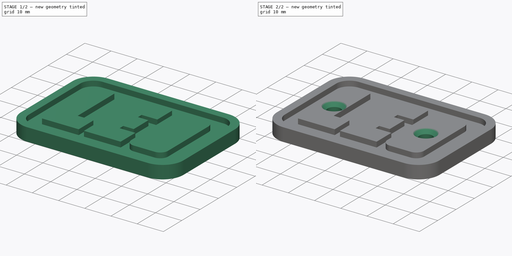
[diagram: build sequence overview — one tinted view per stage of 2, left to right]
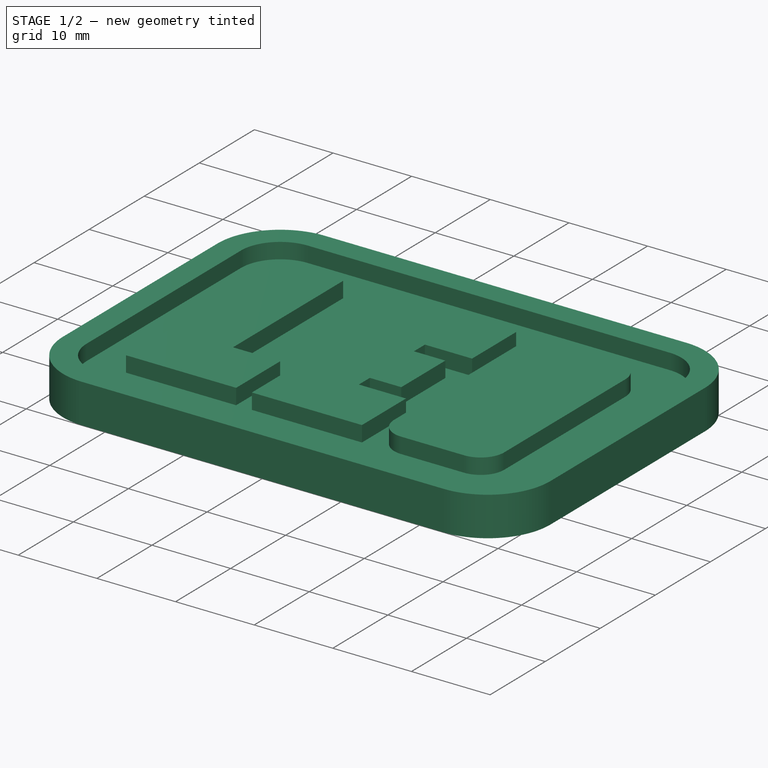
[diagram: stage 1 of 2 — iso view after this stage's code; geometry added in this stage tinted green]
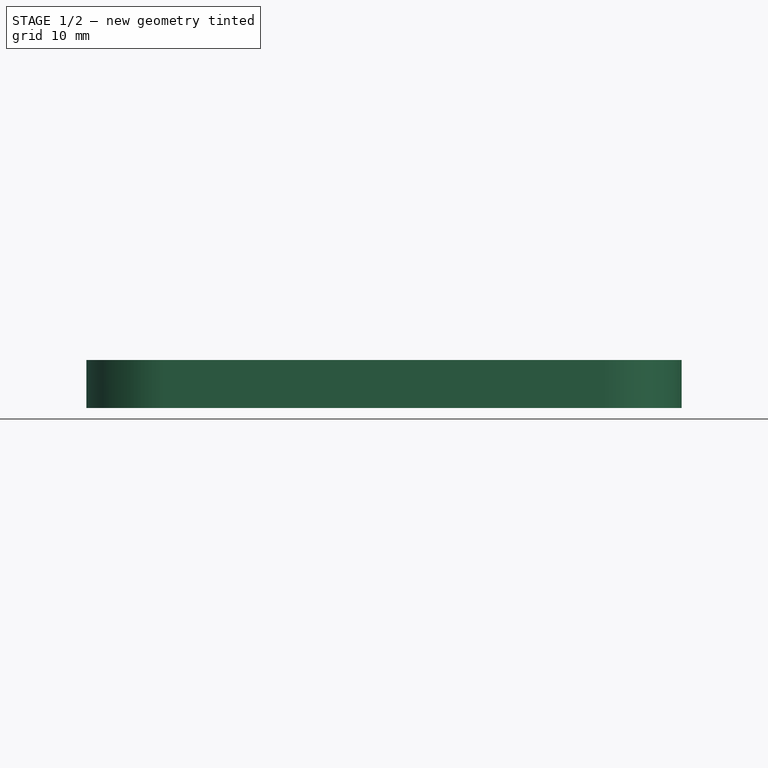
[diagram: stage 1 of 2 — front view after this stage's code; geometry added in this stage tinted green]
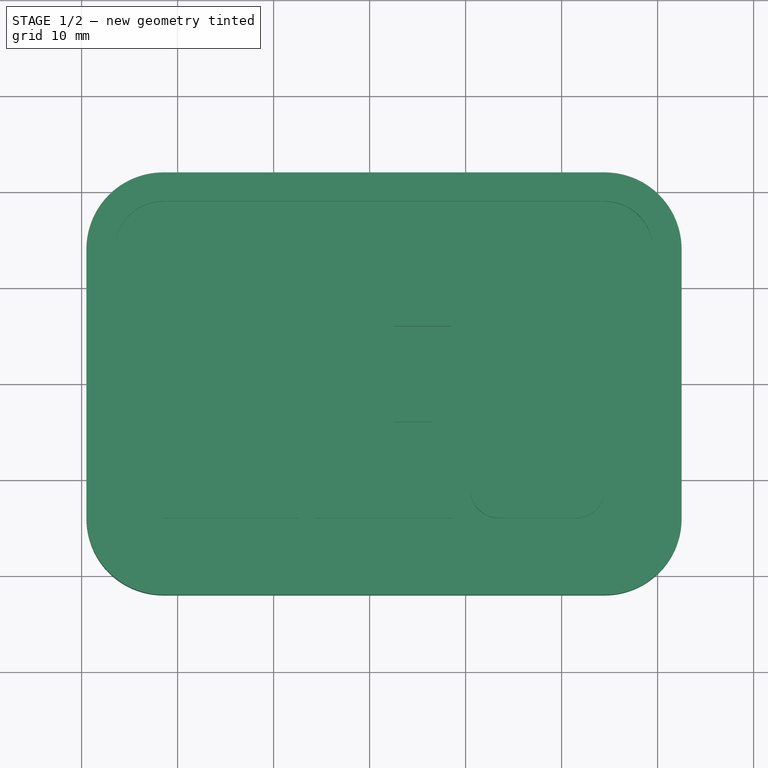
[diagram: stage 1 of 2 — top view after this stage's code; geometry added in this stage tinted green]
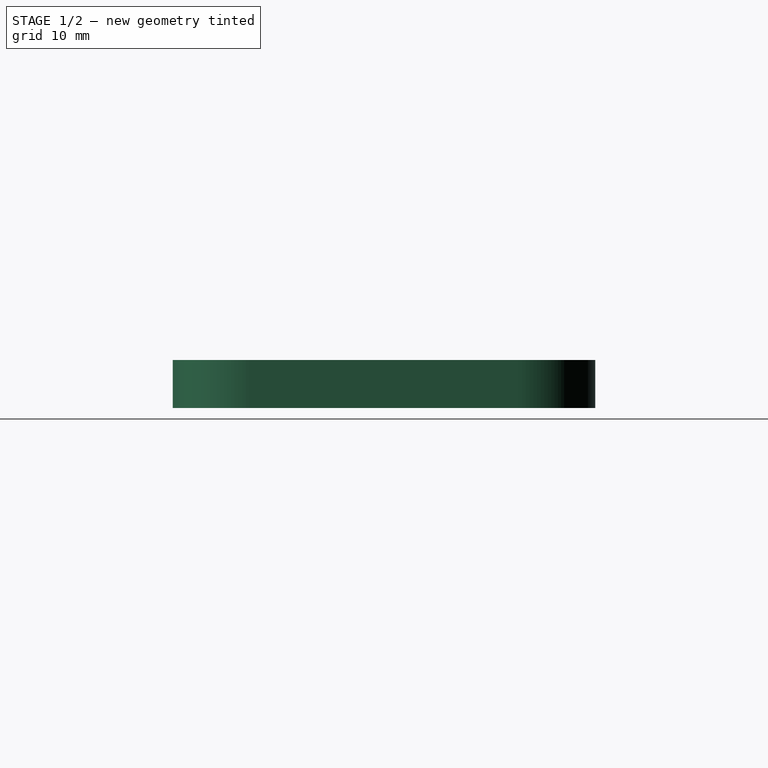
[diagram: stage 1 of 2 — right view after this stage's code; geometry added in this stage tinted green]
FCSTD DOCUMENT  (FreeCAD 0.20RUnknown)
Label: CamperFixLeo
License: All rights reserved
LicenseURL: http://en.wikipedia.org/wiki/All_rights_reserved
objects: Sketcher::SketchObject×3, PartDesign::Pad×2, PartDesign::Hole×1, PartDesign::Body×1
note: 10 computed .brp shape members not serialized (recipe doc carries the construction recipe); baked Part::Feature solids carry a one-line shape summary decoded from their .brp

FEATURE [Sketcher::SketchObject] Sketch
  FullyConstrained = true
  MapMode = 5
  Support = -> [XY_Plane]
  sketch-geometry (70):
    g0: Circle CenterX=-17.5 CenterY=0 CenterZ=0 NormalX=0 NormalY=0 NormalZ=1 AngleXU=0 Radius=4
    g1: Circle CenterX=17.5 CenterY=0 CenterZ=0 NormalX=0 NormalY=0 NormalZ=1 AngleXU=0 Radius=4
    g2: LineSegment StartX=-21.5 StartY=0 StartZ=0 EndX=-9.83333 EndY=0 EndZ=0
    g3: LineSegment StartX=-9.83333 StartY=0 StartZ=0 EndX=1.83333 EndY=0 EndZ=0
    g4: LineSegment StartX=1.83333 StartY=0 StartZ=0 EndX=13.5 EndY=0 EndZ=0
    g5: LineSegment StartX=-21.5 StartY=14 StartZ=0 EndX=-21.5 EndY=-14 EndZ=0
    g6: LineSegment StartX=-21.5 StartY=-14 StartZ=0 EndX=-7.5 EndY=-14 EndZ=0
    g7: LineSegment StartX=-7.5 StartY=-14 StartZ=0 EndX=-7.5 EndY=-6 EndZ=0
    g8: LineSegment StartX=-7.5 StartY=-6 StartZ=0 EndX=-13.5 EndY=-6 EndZ=0
    g9: LineSegment StartX=-13.5 StartY=-6 StartZ=0 EndX=-13.5 EndY=14 EndZ=0
    g10: LineSegment StartX=-13.5 StartY=14 StartZ=0 EndX=-21.5 EndY=14 EndZ=0
    g11: LineSegment StartX=8.5 StartY=14 StartZ=0 EndX=-5.5 EndY=14 EndZ=0
    g12: LineSegment StartX=-5.5 StartY=14 StartZ=0 EndX=-5.5 EndY=-14 EndZ=0
    g13: LineSegment StartX=-5.5 StartY=-14 StartZ=0 EndX=8.5 EndY=-14 EndZ=0
    g14: LineSegment StartX=8.5 StartY=-14 StartZ=0 EndX=8.5 EndY=-6 EndZ=0
    g15: LineSegment StartX=8.5 StartY=-6 StartZ=0 EndX=2.5 EndY=-6 EndZ=0
    g16: LineSegment StartX=2.5 StartY=-4 StartZ=0 EndX=6.5 EndY=-4 EndZ=0
    g17: LineSegment StartX=6.5 StartY=-4 StartZ=0 EndX=6.5 EndY=4 EndZ=0
    g18: LineSegment StartX=6.5 StartY=4 StartZ=0 EndX=2.5 EndY=4 EndZ=0
    g19: LineSegment StartX=2.5 StartY=6 StartZ=0 EndX=8.5 EndY=6 EndZ=0
    g20: LineSegment StartX=8.5 StartY=6 StartZ=0 EndX=8.5 EndY=14 EndZ=0
    g21: LineSegment StartX=2.5 StartY=6 StartZ=0 EndX=-5.5 EndY=6 EndZ=0
    g22: LineSegment StartX=13.5 StartY=14 StartZ=0 EndX=21.5 EndY=14 EndZ=0
    g23: LineSegment StartX=24.5 StartY=11 StartZ=0 EndX=24.5 EndY=-11 EndZ=0
    g24: LineSegment StartX=21.5 StartY=-14 StartZ=0 EndX=13.5 EndY=-14 EndZ=0
    g25: LineSegment StartX=10.5 StartY=-11 StartZ=0 EndX=10.5 EndY=11 EndZ=0
    g26: ArcOfCircle CenterX=13.5 CenterY=11 CenterZ=0 NormalX=0 NormalY=0 NormalZ=1 AngleXU=0 Radius=3 StartAngle=1.5708 EndAngle=3.14159
    g27: GeomPoint X=10.5 Y=14 Z=0
    g28: ArcOfCircle CenterX=21.5 CenterY=11 CenterZ=0 NormalX=0 NormalY=0 NormalZ=1 AngleXU=0 Radius=3 StartAngle=0 EndAngle=1.5708
    g29: GeomPoint X=24.5 Y=14 Z=0
    g30: ArcOfCircle CenterX=21.5 CenterY=-11 CenterZ=0 NormalX=0 NormalY=0 NormalZ=1 AngleXU=0 Radius=3 StartAngle=4.71239 EndAngle=6.28319
    g31: GeomPoint X=24.5 Y=-14 Z=0
    g32: ArcOfCircle CenterX=13.5 CenterY=-11 CenterZ=0 NormalX=0 NormalY=0 NormalZ=1 AngleXU=0 Radius=3 StartAngle=3.14159 EndAngle=4.71239
    g33: GeomPoint X=10.5 Y=-14 Z=0
    g34: LineSegment StartX=10.5 StartY=14 StartZ=0 EndX=10.5 EndY=-14 EndZ=0
    g35: LineSegment StartX=-7.5 StartY=-14 StartZ=0 EndX=-5.5 EndY=-14 EndZ=0
    g36: LineSegment StartX=8.5 StartY=-14 StartZ=0 EndX=10.5 EndY=-14 EndZ=0
    g37: LineSegment StartX=-21.5 StartY=-14 StartZ=0 EndX=-21.5 EndY=0 EndZ=0
    g38: LineSegment StartX=-21.5 StartY=0 StartZ=0 EndX=-21.5 EndY=14 EndZ=0
    g39: LineSegment StartX=-17.5 StartY=0 StartZ=0 EndX=0 EndY=0 EndZ=0
    g40: LineSegment StartX=0 StartY=0 StartZ=0 EndX=17.5 EndY=0 EndZ=0
    g41: ArcOfCircle CenterX=-21.5 CenterY=-14 CenterZ=0 NormalX=0 NormalY=0 NormalZ=1 AngleXU=0 Radius=5 StartAngle=3.14159 EndAngle=4.71239
    g42: LineSegment StartX=-26.5 StartY=-14 StartZ=0 EndX=-26.5 EndY=14 EndZ=0
    g43: ArcOfCircle CenterX=-21.5 CenterY=14 CenterZ=0 NormalX=0 NormalY=0 NormalZ=1 AngleXU=0 Radius=5 StartAngle=1.5708 EndAngle=3.14159
    g44: LineSegment StartX=-21.5 StartY=19 StartZ=0 EndX=24.5 EndY=19 EndZ=0
    g45: ArcOfCircle CenterX=24.5 CenterY=14 CenterZ=0 NormalX=0 NormalY=0 NormalZ=1 AngleXU=0 Radius=5 StartAngle=2e-16 EndAngle=1.5708
    g46: LineSegment StartX=29.5 StartY=14 StartZ=0 EndX=29.5 EndY=-14 EndZ=0
    g47: ArcOfCircle CenterX=24.5 CenterY=-14 CenterZ=0 NormalX=0 NormalY=0 NormalZ=1 AngleXU=0 Radius=5 StartAngle=4.71239 EndAngle=6.28319
    g48: LineSegment StartX=24.5 StartY=-19 StartZ=0 EndX=-21.5 EndY=-19 EndZ=0
    g49: GeomPoint X=-26.5 Y=-19 Z=0
    g50: GeomPoint X=29.5 Y=19 Z=0
    g51: ArcOfCircle CenterX=-21.5 CenterY=14 CenterZ=0 NormalX=0 NormalY=0 NormalZ=1 AngleXU=0 Radius=8 StartAngle=1.5708 EndAngle=3.14159
    g52: LineSegment StartX=-21.5 StartY=22 StartZ=0 EndX=24.5 EndY=22 EndZ=0
    g53: ArcOfCircle CenterX=24.5 CenterY=14 CenterZ=0 NormalX=0 NormalY=0 NormalZ=1 AngleXU=0 Radius=8 StartAngle=0 EndAngle=1.5708
    g54: LineSegment StartX=32.5 StartY=14 StartZ=0 EndX=32.5 EndY=-14 EndZ=0
    g55: ArcOfCircle CenterX=24.5 CenterY=-14 CenterZ=0 NormalX=0 NormalY=0 NormalZ=1 AngleXU=0 Radius=8 StartAngle=4.71239 EndAngle=6.28319
    g56: LineSegment StartX=24.5 StartY=-22 StartZ=0 EndX=-21.5 EndY=-22 EndZ=0
    g57: ArcOfCircle CenterX=-21.5 CenterY=-14 CenterZ=0 NormalX=0 NormalY=0 NormalZ=1 AngleXU=0 Radius=8 StartAngle=3.14159 EndAngle=4.71239
    g58: LineSegment StartX=-29.5 StartY=-14 StartZ=0 EndX=-29.5 EndY=14 EndZ=0
    g59: GeomPoint X=-29.5 Y=22 Z=0
    g60: GeomPoint X=32.5 Y=-22 Z=0
    g61: LineSegment StartX=-21.5 StartY=22 StartZ=0 EndX=-21.5 EndY=19 EndZ=0
    g62: LineSegment StartX=-26.5 StartY=14 StartZ=0 EndX=-29.5 EndY=14 EndZ=0
    g63: LineSegment StartX=24.5 StartY=-19 StartZ=0 EndX=24.5 EndY=-22 EndZ=0
    g64: LineSegment StartX=29.5 StartY=-14 StartZ=0 EndX=32.5 EndY=-14 EndZ=0
    g65: LineSegment StartX=10.5 StartY=11 StartZ=0 EndX=24.5 EndY=11 EndZ=0
    g66: LineSegment StartX=10.5 StartY=0 StartZ=0 EndX=17.5 EndY=0 EndZ=0
    g67: LineSegment StartX=24.5 StartY=0 StartZ=0 EndX=17.5 EndY=0 EndZ=0
    g68: LineSegment StartX=2.5 StartY=6 StartZ=0 EndX=2.5 EndY=4 EndZ=0
    g69: LineSegment StartX=2.5 StartY=-4 StartZ=0 EndX=2.5 EndY=-6 EndZ=0
  constraints (178):
    c: PointOnObject(g0,g-1)
    c: PointOnObject(g1,g-1)
    c: Equal(g0,g1)
    c: DistanceX(g0,g1) = 35
    c: Diameter(g0) = 8
    c: PointOnObject(g2,g0)
    c: Coincident(g2,g3)
    c: Horizontal(g3)
    c: Coincident(g3,g4)
    c: PointOnObject(g4,g1)
    c: Horizontal(g2)
    c: Horizontal(g4)
    c: PointOnObject(g2,g-1)
    c: Equal(g2,g3)
    c: Equal(g4,g3)
    c: Vertical(g5)
    c: Coincident(g5,g6)
    c: Horizontal(g6)
    c: Coincident(g6,g7)
    c: Coincident(g7,g8)
    c: Horizontal(g8)
    c: Coincident(g8,g9)
    c: Vertical(g9)
    c: Coincident(g9,g10)
    c: Coincident(g10,g5)
    c: Horizontal(g10)
    c: Equal(g10,g7)
    c: Vertical(g7)
    c: Horizontal(g11)
    c: Coincident(g11,g12)
    c: Vertical(g12)
    c: Coincident(g12,g13)
    c: Horizontal(g13)
    c: Coincident(g13,g14)
    c: Vertical(g14)
    c: Coincident(g14,g15)
    c: Horizontal(g15)
    c: Coincident(g16,g17)
    c: Coincident(g17,g18)
    c: Horizontal(g18)
    c: Horizontal(g19)
    c: Coincident(g19,g20)
    c: Coincident(g20,g11)
    c: Vertical(g20)
    c: Vertical(g17)
    c: Horizontal(g16)
    c: Equal(g7,g14)
    c: Equal(g14,g20)
    c: PointOnObject(g21,g12)
    c: Horizontal(g21)
    c: Equal(g21,g10)
    c: Equal(g18,g16)
    c: Equal(g13,g11)
    c: Equal(g12,g5)
    c: Equal(g13,g6)
    c: Horizontal(g22)
    c: Horizontal(g24)
    c: Vertical(g23)
    c: Vertical(g25)
    c: PointOnObject(g27,g22)
    c: PointOnObject(g27,g25)
    c: Tangent(g22,g26) = 1.5708
    c: Tangent(g25,g26) = 1.5708
    c: PointOnObject(g29,g22)
    c: PointOnObject(g29,g23)
    c: Tangent(g22,g28) = 1.5708
    c: Tangent(g23,g28) = 1.5708
    c: PointOnObject(g31,g23)
    c: PointOnObject(g31,g24)
    c: Tangent(g23,g30) = 1.5708
    c: Tangent(g24,g30) = 1.5708
    c: PointOnObject(g33,g24)
    c: PointOnObject(g33,g25)
    c: Tangent(g24,g32) = 1.5708
    c: Tangent(g25,g32) = 1.5708
    c: Equal(g32,g30)
    c: Equal(g30,g28)
    c: Equal(g28,g26)
    c: Coincident(g34,g27)
    c: Coincident(g34,g33)
    c: Equal(g34,g12)
    c: Coincident(g35,g6)
    c: Coincident(g35,g12)
    c: Coincident(g36,g13)
    c: Coincident(g36,g33)
    c: Horizontal(g35)
    c: Horizontal(g36)
    c: Coincident(g5,g37)
    c: Coincident(g37,g38)
    c: Coincident(g38,g5)
    c: Equal(g38,g37)
    c: PointOnObject(g37,g5)
    c: Coincident(g37,g2)
    c: DistanceX(g10,g10) = 8
    c: Equal(g35,g36)
    c: Coincident(g39,g0)
    c: PointOnObject(g39,g-2)
    c: Coincident(g39,g40)
    c: Coincident(g40,g1)
    c: Equal(g39,g40)
    c: Horizontal(g39)
    c: Tangent(g41,g42) = 1.5708
    c: Tangent(g42,g43) = 1.5708
    c: Tangent(g43,g44) = 1.5708
    c: Tangent(g44,g45) = 1.5708
    c: Tangent(g45,g46) = 1.5708
    c: Tangent(g46,g47) = 1.5708
    c: Tangent(g47,g48) = 1.5708
    c: Tangent(g48,g41) = 1.5708
    c: Horizontal(g44)
    c: Horizontal(g48)
    c: Vertical(g42)
    c: Vertical(g46)
    c: Equal(g41,g43)
    c: Equal(g43,g45)
    c: Equal(g45,g47)
    c: PointOnObject(g49,g42)
    c: PointOnObject(g49,g48)
    c: PointOnObject(g50,g44)
    c: PointOnObject(g50,g46)
    c: Radius(g43) = 5
    c: Coincident(g41,g5)
    c: Coincident(g29,g45)
    c: Tangent(g51,g52) = 1.5708
    c: Tangent(g52,g53) = 1.5708
    c: Tangent(g53,g54) = 1.5708
    c: Tangent(g54,g55) = 1.5708
    c: Tangent(g55,g56) = 1.5708
    c: Tangent(g56,g57) = 1.5708
    c: Tangent(g57,g58) = 1.5708
    c: Tangent(g58,g51) = 1.5708
    c: Horizontal(g52)
    c: Horizontal(g56)
    c: Vertical(g54)
    c: Vertical(g58)
    c: Equal(g51,g53)
    c: Equal(g53,g55)
    c: Equal(g55,g57)
    c: PointOnObject(g59,g52)
    c: PointOnObject(g59,g58)
    c: PointOnObject(g60,g54)
    c: PointOnObject(g60,g56)
    c: Coincident(g61,g51)
    c: Coincident(g61,g43)
    c: Coincident(g62,g42)
    c: Coincident(g62,g51)
    c: Coincident(g63,g47)
    c: Coincident(g63,g55)
    c: Coincident(g64,g46)
    c: Coincident(g64,g54)
    c: Horizontal(g62)
    c: Horizontal(g64)
    c: Vertical(g63)
    c: Vertical(g61)
    c: DistanceX(g62,g62) = 3
    c: DistanceX(g35,g35) = 2
    c: Radius(g26) = 3
    c: Coincident(g65,g25)
    c: Coincident(g65,g23)
    c: Equal(g65,g11)
    c: PointOnObject(g66,g25)
    c: Coincident(g66,g1)
    c: PointOnObject(g67,g23)
    c: Coincident(g67,g1)
    c: Equal(g66,g67)
    c: Horizontal(g66)
    c: Horizontal(g67)
    c: Equal(g17,g14)
    c: Coincident(g68,g19)
    c: Coincident(g68,g18)
    c: Vertical(g68)
    c: Coincident(g69,g16)
    c: Coincident(g69,g15)
    c: Vertical(g69)
    c: Equal(g69,g68)
    c: Coincident(g21,g19)
    c: DistanceX(g18,g18) = 4
    c: DistanceY(g69,g69) = 2
FEATURE [Sketcher::SketchObject] Sketch001
  ExternalGeometry = -> [Sketch]
  FullyConstrained = true
  MapMode = 5
  Support = -> [XY_Plane]
  sketch-geometry (10):
    g0: ArcOfCircle CenterX=-21.5 CenterY=14 CenterZ=0 NormalX=0 NormalY=0 NormalZ=1 AngleXU=0 Radius=8 StartAngle=1.5708 EndAngle=3.14159
    g1: LineSegment StartX=-21.5 StartY=22 StartZ=0 EndX=24.5 EndY=22 EndZ=0
    g2: ArcOfCircle CenterX=24.5 CenterY=14 CenterZ=0 NormalX=0 NormalY=0 NormalZ=1 AngleXU=0 Radius=8 StartAngle=2e-16 EndAngle=1.5708
    g3: LineSegment StartX=32.5 StartY=14 StartZ=0 EndX=32.5 EndY=-14 EndZ=0
    g4: ArcOfCircle CenterX=24.5 CenterY=-14 CenterZ=0 NormalX=0 NormalY=0 NormalZ=1 AngleXU=0 Radius=8 StartAngle=4.71239 EndAngle=6.28319
    g5: LineSegment StartX=24.5 StartY=-22 StartZ=0 EndX=-21.5 EndY=-22 EndZ=0
    g6: ArcOfCircle CenterX=-21.5 CenterY=-14 CenterZ=0 NormalX=0 NormalY=0 NormalZ=1 AngleXU=0 Radius=8 StartAngle=3.14159 EndAngle=4.71239
    g7: LineSegment StartX=-29.5 StartY=-14 StartZ=0 EndX=-29.5 EndY=14 EndZ=0
    g8: GeomPoint X=-29.5 Y=22 Z=0
    g9: GeomPoint X=32.5 Y=-22 Z=0
  constraints (23):
    c: Tangent(g0,g1) = 1.5708
    c: Tangent(g1,g2) = 1.5708
    c: Tangent(g2,g3) = 1.5708
    c: Tangent(g3,g4) = 1.5708
    c: Tangent(g4,g5) = 1.5708
    c: Tangent(g5,g6) = 1.5708
    c: Tangent(g6,g7) = 1.5708
    c: Tangent(g7,g0) = 1.5708
    c: Horizontal(g1)
    c: Horizontal(g5)
    c: Vertical(g3)
    c: Vertical(g7)
    c: Equal(g0,g2)
    c: Equal(g2,g4)
    c: Equal(g4,g6)
    c: PointOnObject(g8,g1)
    c: PointOnObject(g8,g7)
    c: PointOnObject(g9,g3)
    c: PointOnObject(g9,g5)
    c: Equal(g1,g-3)
    c: Equal(g7,g-6)
    c: Equal(g0,g-7)
    c: Coincident(g0,g-7)
FEATURE [PartDesign::Pad] Pad
  Direction = (0,0,1)
  Length = 3
  Length2 = 10
  Profile = -> Sketch001
  ReferenceAxis = -> Sketch001 [N_Axis]
  Reversed = true
  Type = 0
FEATURE [PartDesign::Pad] Pad001
  BaseFeature = -> Pad
  Direction = (0,0,1)
  Length = 2
  Length2 = 10
  Profile = -> Sketch
  ReferenceAxis = -> Sketch [N_Axis]
  Type = 0
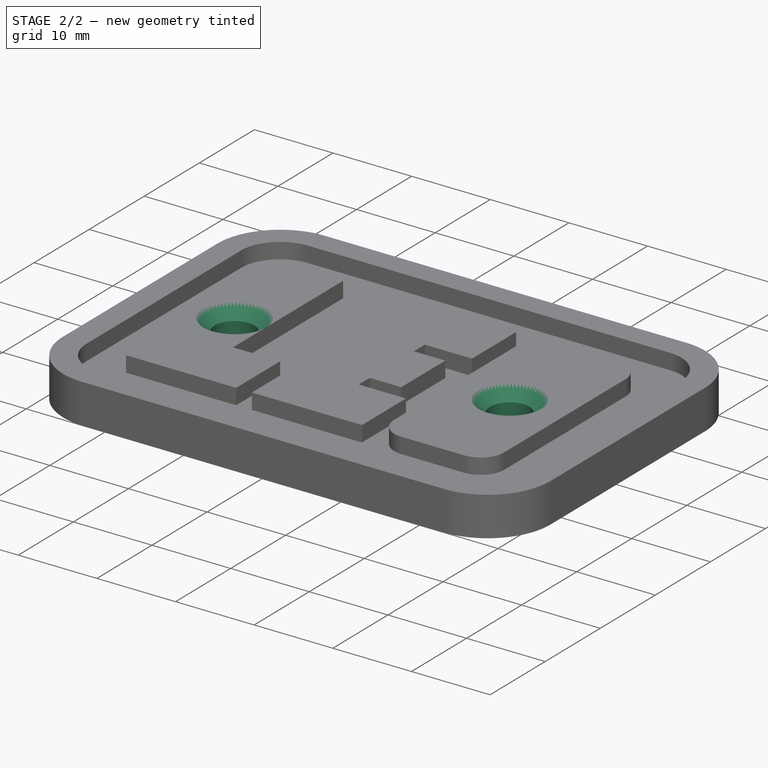
[diagram: stage 2 of 2 — iso view after this stage's code; geometry added in this stage tinted green]
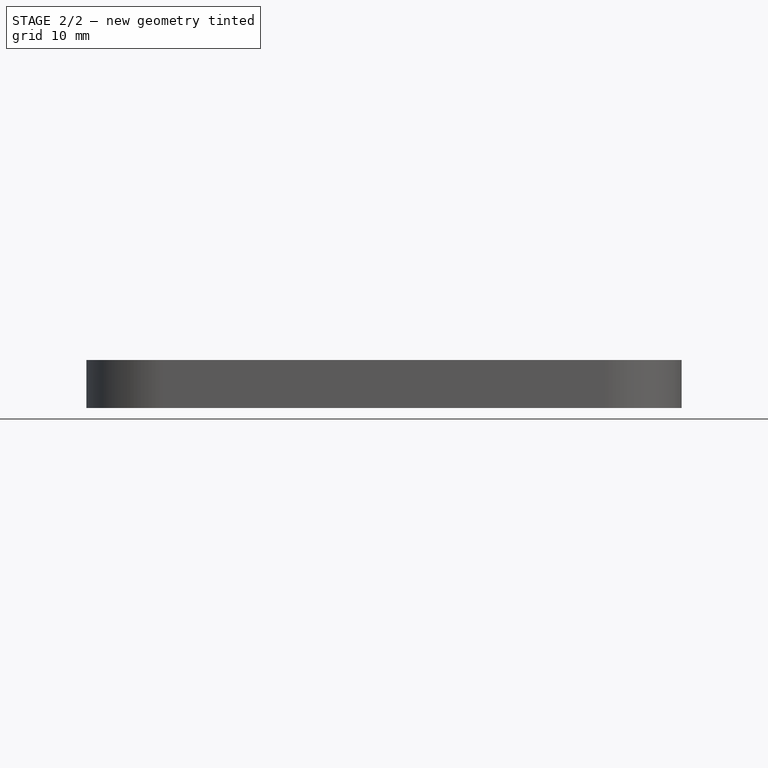
[diagram: stage 2 of 2 — front view after this stage's code; geometry added in this stage tinted green]
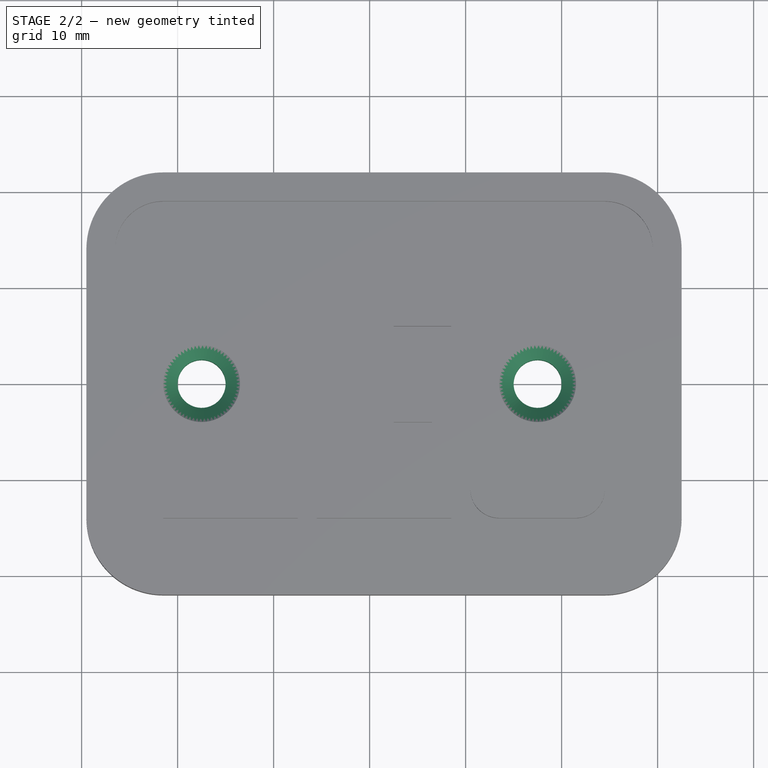
[diagram: stage 2 of 2 — top view after this stage's code; geometry added in this stage tinted green]
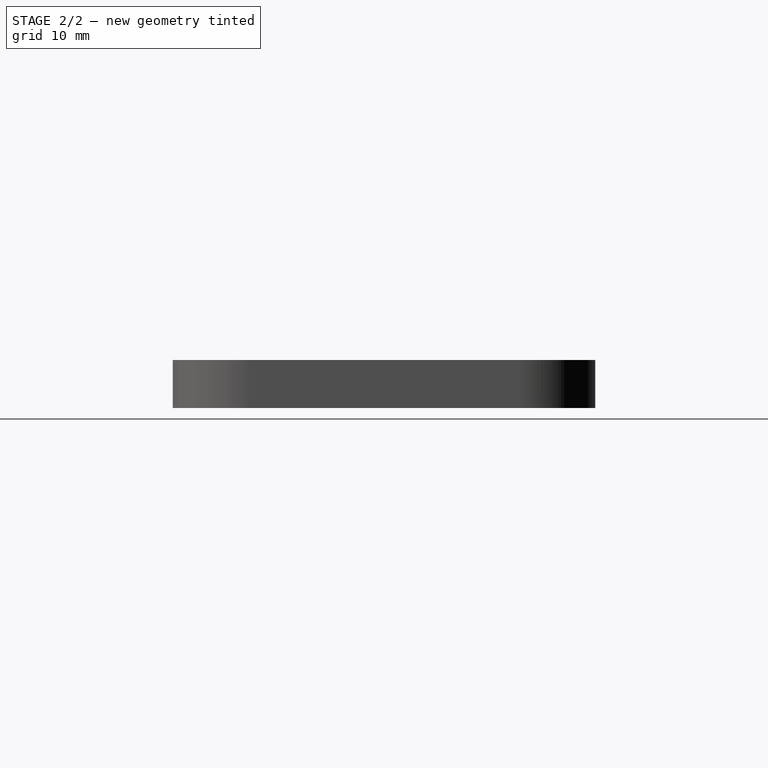
[diagram: stage 2 of 2 — right view after this stage's code; geometry added in this stage tinted green]
FEATURE [Sketcher::SketchObject] Sketch002  label="SketchHoles"
  ExternalGeometry = -> [Pad001]
  FullyConstrained = true
  MapMode = 5
  Placement = pos=(0,0,2) rot=(0,0,1;0rad)
  Support = -> [Pad001]
  sketch-geometry (2):
    g0: Circle CenterX=-17.5 CenterY=0 CenterZ=0 NormalX=0 NormalY=0 NormalZ=1 AngleXU=0 Radius=4
    g1: Circle CenterX=17.5 CenterY=0 CenterZ=0 NormalX=0 NormalY=0 NormalZ=1 AngleXU=0 Radius=7
  constraints (6):
    c: PointOnObject(g0,g-1)
    c: Tangent(g0,g-4)
    c: PointOnObject(g1,g-1)
    c: Tangent(g1,g-6)
    c: Tangent(g1,g-5)
    c: Tangent(g0,g-3)
FEATURE [PartDesign::Hole] Hole
  BaseFeature = -> Pad001
  CustomThreadClearance = 0
  Depth = 25
  DepthType = 0
  Diameter = 5
  DrillForDepth = false
  DrillPoint = 1
  DrillPointAngle = 118
  HoleCutCountersinkAngle = 90
  HoleCutCustomValues = false
  HoleCutDepth = 0
  HoleCutDiameter = 8
  HoleCutType = 2
  ModelThread = false
  Profile = -> Sketch002
  Tapered = false
  TaperedAngle = 90
  ThreadClass = 0
  ThreadDepth = 25
  ThreadDepthType = 0
  ThreadDirection = 0
  ThreadFit = 0
  ThreadSize = 0
  ThreadType = 0
  Threaded = false
  UseCustomThreadClearance = false
FEATURE [PartDesign::Body] Body
  Group = -> [Sketch,Sketch001,Pad,Pad001,Sketch002,Hole]
  Origin = -> Origin
  Tip = -> Hole
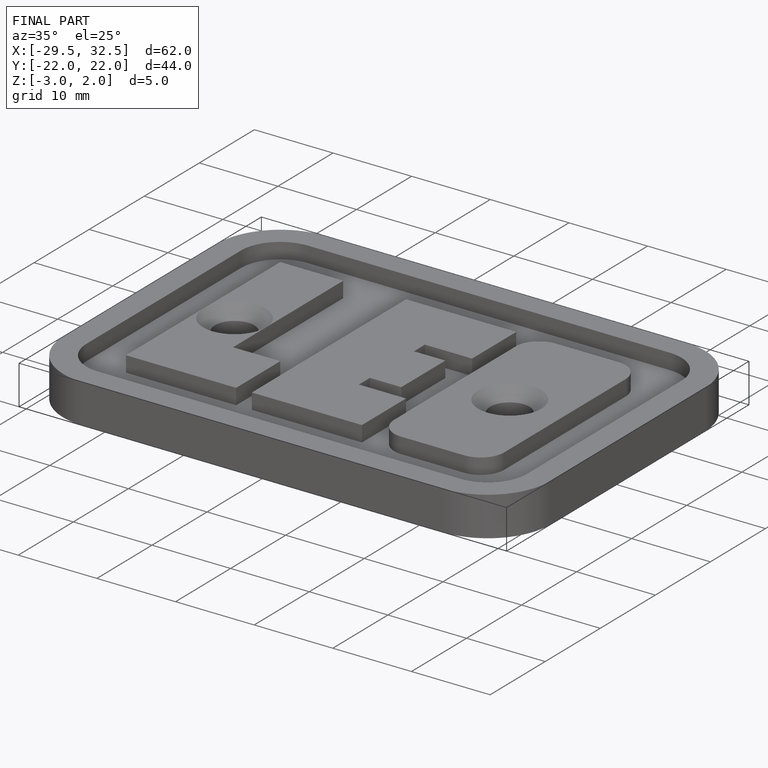
[diagram: finished part — iso view with bounding-box wireframe]
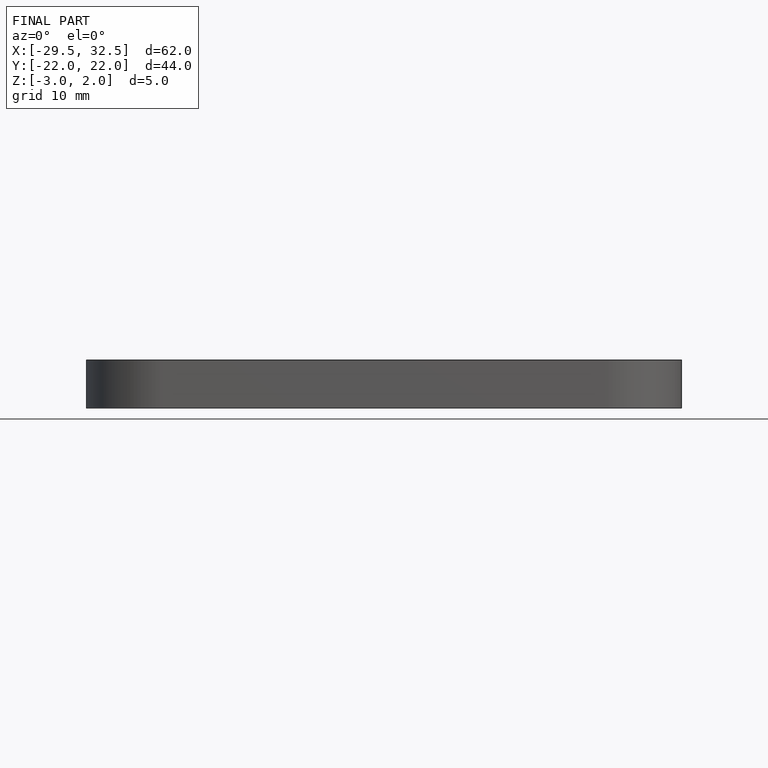
[diagram: finished part — front view with bounding-box wireframe]
